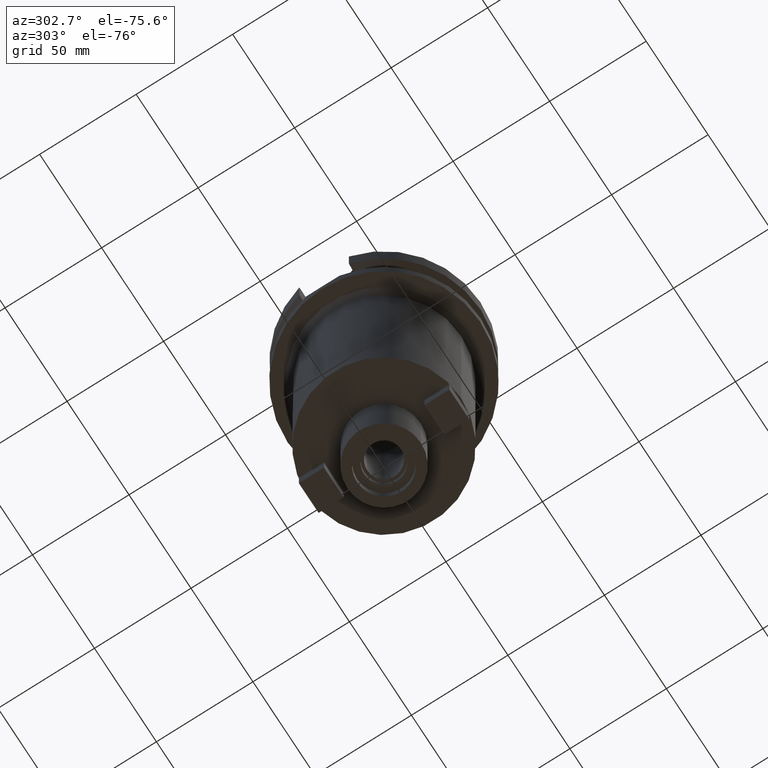
[diagram: clean part render]
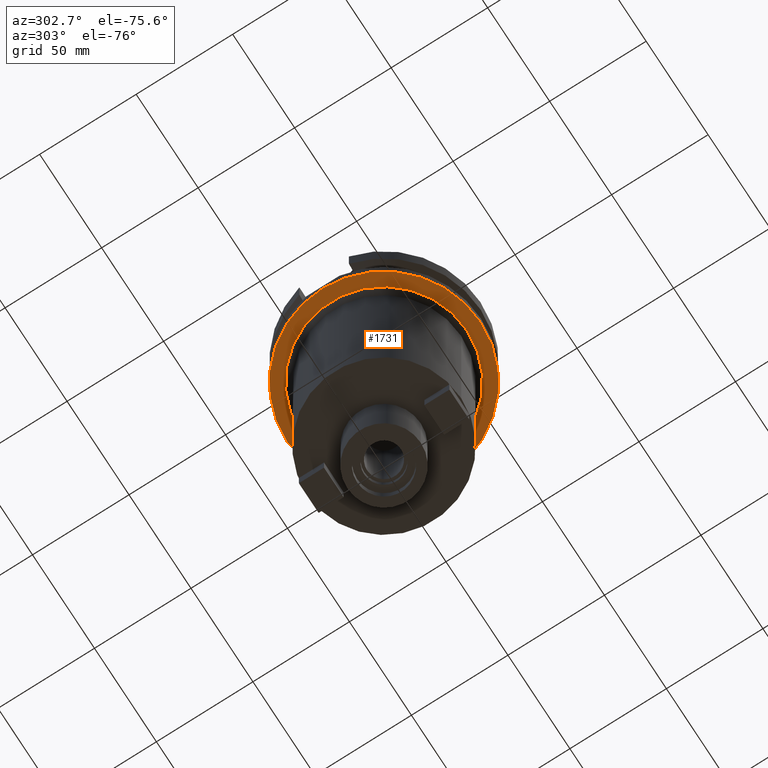
[diagram: same view with one face highlighted and labeled with its STEP entity id]
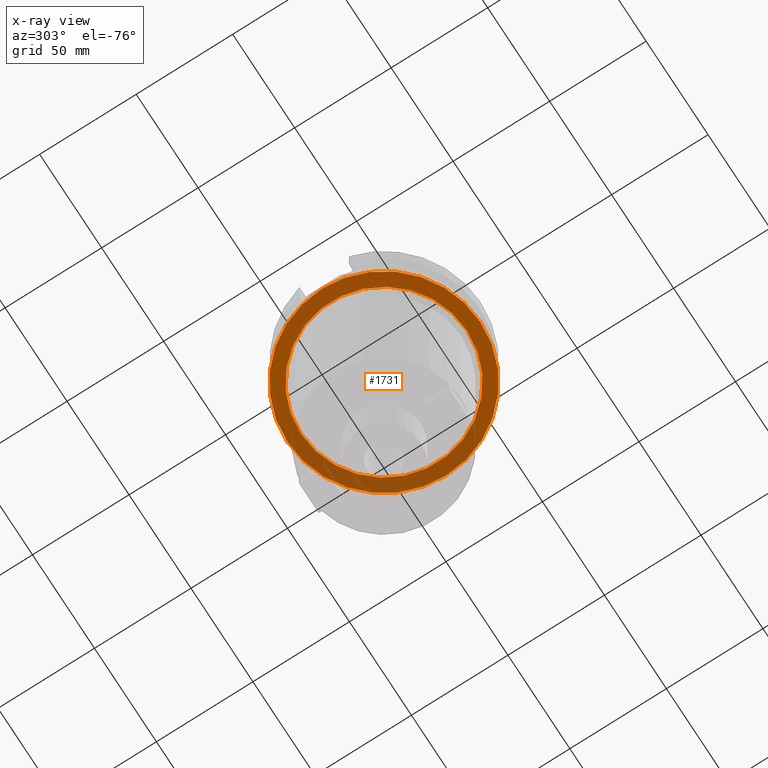
[diagram: x-ray of the same camera — body ghosted, the highlighted face saturated]
A machine part, auxiliary view. The second image highlights one B-rep face of the part: STEP entity #1731.
The next image is the same camera in x-ray: the body ghosted, the highlighted face saturated — about 33% of this face is hidden behind the body in this view.
In plain terms, the highlighted planar face has unit normal (0, 0, -1).
Its self-contained STEP definition (entity closure, byte-faithful):
#501=CARTESIAN_POINT('',(0.E0,2.646339268278E-14,-3.8E1));
#502=DIRECTION('',(0.E0,0.E0,1.E0));
#503=DIRECTION('',(0.E0,1.E0,0.E0));
#504=AXIS2_PLACEMENT_3D('',#501,#502,#503);
#509=CARTESIAN_POINT('',(0.E0,2.646339268278E-14,-3.8E1));
#510=DIRECTION('',(0.E0,0.E0,1.E0));
#511=DIRECTION('',(0.E0,-1.E0,0.E0));
#512=AXIS2_PLACEMENT_3D('',#509,#510,#511);
#517=CARTESIAN_POINT('',(0.E0,0.E0,-3.8E1));
#518=DIRECTION('',(0.E0,0.E0,-1.E0));
#519=DIRECTION('',(0.E0,1.E0,0.E0));
#520=AXIS2_PLACEMENT_3D('',#517,#518,#519);
#525=CARTESIAN_POINT('',(0.E0,0.E0,-3.8E1));
#526=DIRECTION('',(0.E0,0.E0,-1.E0));
#527=DIRECTION('',(0.E0,-1.E0,0.E0));
#528=AXIS2_PLACEMENT_3D('',#525,#526,#527);
#1266=CARTESIAN_POINT('',(0.E0,5.E1,-3.8E1));
#1267=VERTEX_POINT('',#1266);
#1268=CARTESIAN_POINT('',(0.E0,-5.E1,-3.8E1));
#1269=VERTEX_POINT('',#1268);
#1270=CARTESIAN_POINT('',(0.E0,4.3E1,-3.8E1));
#1271=CARTESIAN_POINT('',(0.E0,-4.3E1,-3.8E1));
#1272=VERTEX_POINT('',#1270);
#1273=VERTEX_POINT('',#1271);
#1716=CARTESIAN_POINT('',(0.E0,0.E0,-3.8E1));
#1717=DIRECTION('',(0.E0,0.E0,-1.E0));
#1718=DIRECTION('',(0.E0,-1.E0,0.E0));
#1719=AXIS2_PLACEMENT_3D('',#1716,#1717,#1718);
#1720=PLANE('',#1719);
#1721=ORIENTED_EDGE('',*,*,#1709,.T.);
#1722=ORIENTED_EDGE('',*,*,#1676,.T.);
#1723=EDGE_LOOP('',(#1721,#1722));
#1724=FACE_OUTER_BOUND('',#1723,.F.);
#1726=ORIENTED_EDGE('',*,*,#1725,.T.);
#1728=ORIENTED_EDGE('',*,*,#1727,.T.);
#1729=EDGE_LOOP('',(#1726,#1728));
#1730=FACE_BOUND('',#1729,.F.);
#505=CIRCLE('',#504,5.E1);
#513=CIRCLE('',#512,5.E1);
#521=CIRCLE('',#520,4.3E1);
#529=CIRCLE('',#528,4.3E1);
#1676=EDGE_CURVE('',#1269,#1267,#513,.T.);
#1709=EDGE_CURVE('',#1267,#1269,#505,.T.);
#1725=EDGE_CURVE('',#1272,#1273,#521,.T.);
#1727=EDGE_CURVE('',#1273,#1272,#529,.T.);
#1731=ADVANCED_FACE('',(#1724,#1730),#1720,.T.);